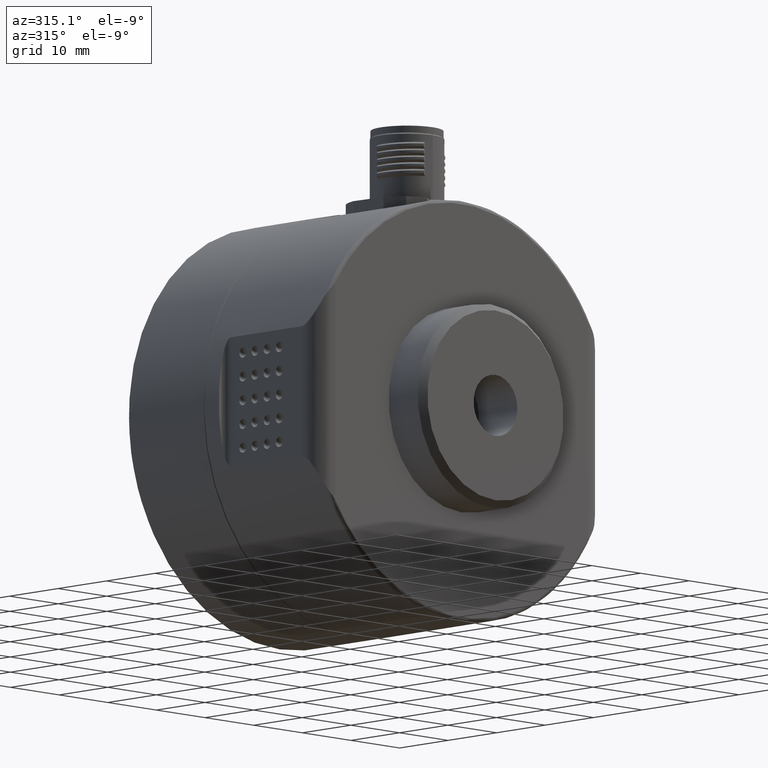
[diagram: clean part render]
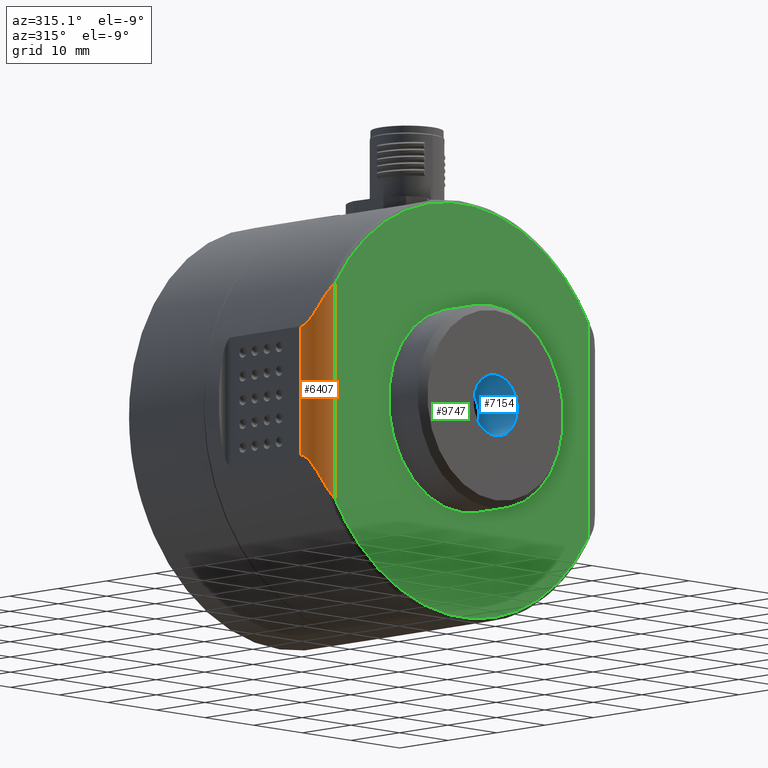
[diagram: same view with three faces highlighted in distinct colors, each labeled with its STEP entity id]
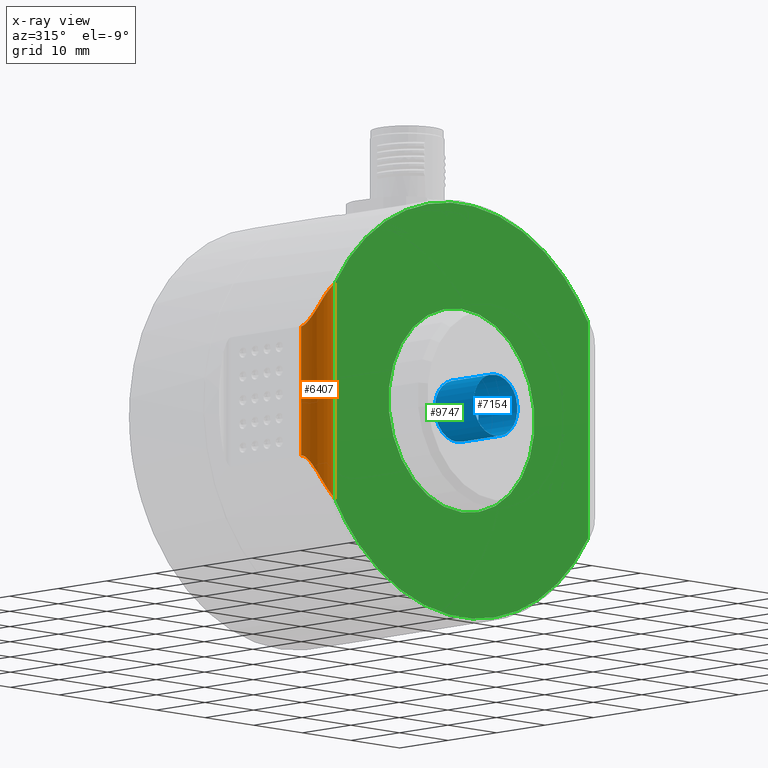
[diagram: x-ray of the same camera — body ghosted, the three highlighted faces saturated]
A machine part, auxiliary view with three faces highlighted in distinct colors.
The next image is the same camera in x-ray (body ghosted, the three faces saturated) — at least one of them is partly hidden behind the body in this view.
Their STEP definitions:

[orange] entity #6407 — the highlighted cylindrical surface (edge-blend (fillet) strip) has radius 3.5 mm, axis along (0, 0, -1).
#298 = CARTESIAN_POINT ( 'NONE',  ( -29.01983627610192684, 8.724490029200730135, -10.90364613308207353 ) ) ;
#545 = CARTESIAN_POINT ( 'NONE',  ( -27.58733386876492588, 7.377371260915672302, -14.11732739898662636 ) ) ;
#601 = CARTESIAN_POINT ( 'NONE',  ( -29.47062372123141927, 10.03319117422748619, 9.616846404971060025 ) ) ;
#784 = CARTESIAN_POINT ( 'NONE',  ( -29.22439851357635021, 9.128294668295218628, 10.34244436372416232 ) ) ;
#1250 = CARTESIAN_POINT ( 'NONE',  ( -29.02109533725660029, 8.726678681763925027, 10.90027786509885210 ) ) ;
#1462 = CARTESIAN_POINT ( 'NONE',  ( -26.84675525649644001, 7.103750489640388466, 15.10660826275925039 ) ) ;
#1556 = CARTESIAN_POINT ( 'NONE',  ( -26.99191942183109560, 7.143479581205147255, 14.93971739706575974 ) ) ;
#1652 = CARTESIAN_POINT ( 'NONE',  ( -26.65316485373524813, 7.060402648696473271, 15.31577344562801102 ) ) ;
#1775 = CARTESIAN_POINT ( 'NONE',  ( -26.41533613868700670, 6.999999999999997335, -15.56825435029491622 ) ) ;
#1865 = CARTESIAN_POINT ( 'NONE',  ( -27.32356021060166995, 7.258974175044822452, -14.51448720846763685 ) ) ;
#2046 = CARTESIAN_POINT ( 'NONE',  ( -27.21450280261062460, 7.217242325463312902, -14.66167515066895000 ) ) ;
#2136 = CARTESIAN_POINT ( 'NONE',  ( -27.02510783118060189, 7.153483535509061575, -14.90004620335820817 ) ) ;
#2199 = CARTESIAN_POINT ( 'NONE',  ( -29.41410298619695851, 9.722507020761527841, 9.788491440914798503 ) ) ;
#2635 = CARTESIAN_POINT ( 'NONE',  ( -26.00000000000000355, 7.000000000000000888, -31.00000000000000000 ) ) ;
#2841 = CARTESIAN_POINT ( 'NONE',  ( -28.00612403063212597, 7.622197176230771198, -13.29918727594713701 ) ) ;
#3349 = CARTESIAN_POINT ( 'NONE',  ( -26.00000000000000355, 6.999999999999999112, -15.94521871910199806 ) ) ;
#3364 = CARTESIAN_POINT ( 'NONE',  ( -27.04105236610530838, 7.158407952738765623, -14.88078026903287743 ) ) ;
#3455 = CARTESIAN_POINT ( 'NONE',  ( -27.39236051198800936, 7.288078150401632982, -14.41569639505568645 ) ) ;
#3487 = CARTESIAN_POINT ( 'NONE',  ( -29.50000000000000000, 10.49999999999999822, -9.526279441628846101 ) ) ;
#3986 = CARTESIAN_POINT ( 'NONE',  ( -26.00000000000000355, 6.999999999999999112, 15.94521871910200161 ) ) ;
#4094 = CARTESIAN_POINT ( 'NONE',  ( -29.50000000000000000, 10.49999999999999822, 9.526279441628833666 ) ) ;
#4527 = CARTESIAN_POINT ( 'NONE',  ( -29.34134207774093639, 9.444449703813807773, -10.00588749692990120 ) ) ;
#4621 = CARTESIAN_POINT ( 'NONE',  ( -29.47031814214039969, 10.03104485144943858, -9.617783244217141814 ) ) ;
#4685 = CARTESIAN_POINT ( 'NONE',  ( -27.09061135674770426, 7.174144399196317856, -14.82015127426037004 ) ) ;
#4824 = EDGE_LOOP ( 'NONE', ( #10750, #7189, #8680, #16443, #11453, #8733 ) ) ;
#4919 = CARTESIAN_POINT ( 'NONE',  ( -29.33953613692756690, 9.448267042202049382, 10.00989422962624431 ) ) ;
#4954 = CARTESIAN_POINT ( 'NONE',  ( -27.80277563773200811, 7.500000000000001776, -13.71151584756169584 ) ) ;
#5282 = CARTESIAN_POINT ( 'NONE',  ( -28.00604246678271636, 7.622148162457222043, 13.29935266257767346 ) ) ;
#5561 = VERTEX_POINT ( 'NONE', #5788 ) ;
#5562 = CARTESIAN_POINT ( 'NONE',  ( -29.15937691855007330, 8.986717798612191999, 10.52476934818192511 ) ) ;
#5788 = CARTESIAN_POINT ( 'NONE',  ( -27.80277563773200811, 7.500000000000001776, -13.71151584756169584 ) ) ;
#6025 = CARTESIAN_POINT ( 'NONE',  ( -28.94673212243806759, 8.606704475342787930, -11.09642382798660520 ) ) ;
#6151 = CARTESIAN_POINT ( 'NONE',  ( -29.49373035344656202, 10.26127900888379330, 9.545746022883585979 ) ) ;
#6273 = CARTESIAN_POINT ( 'NONE',  ( -27.03104537953573328, 7.155306760758024964, -14.89288994995851390 ) ) ;
#6407 = ADVANCED_FACE ( 'NONE', ( #8462 ), #16730, .T. ) ;
#6698 = CARTESIAN_POINT ( 'NONE',  ( -28.55411095831469126, 8.094704563450479284, 12.07719865019971195 ) ) ;
#6778 = CARTESIAN_POINT ( 'NONE',  ( -26.00000000000000355, 10.50000000000000000, -31.00000000000000000 ) ) ;
#7065 = CARTESIAN_POINT ( 'NONE',  ( -29.49349807574635562, 10.25813612552242304, -9.546464119644451074 ) ) ;
#7189 = ORIENTED_EDGE ( 'NONE', *, *, #11470, .F. ) ;
#7190 = CARTESIAN_POINT ( 'NONE',  ( -26.90155517840251775, 7.117763660085286048, 15.04513255979402508 ) ) ;
#7282 = CARTESIAN_POINT ( 'NONE',  ( -27.00443526268167105, 7.147220762579415521, 14.92481289649464316 ) ) ;
#8148 = DIRECTION ( 'NONE',  ( -0.000000000000000000, 0.000000000000000000, -1.000000000000000000 ) ) ;
#8462 = FACE_OUTER_BOUND ( 'NONE', #4824, .T. ) ;
#8560 = CARTESIAN_POINT ( 'NONE',  ( -29.50000000000000000, 10.49999999999999822, -9.526279441628846101 ) ) ;
#8680 = ORIENTED_EDGE ( 'NONE', *, *, #9253, .T. ) ;
#8733 = ORIENTED_EDGE ( 'NONE', *, *, #17654, .F. ) ;
#8745 = CARTESIAN_POINT ( 'NONE',  ( -29.49999999999998579, 10.37871542967276817, -9.526279441628814126 ) ) ;
#9184 = VECTOR ( 'NONE', #9662, 1000.000000000000000 ) ;
#9253 = EDGE_CURVE ( 'NONE', #5561, #11710, #10244, .T. ) ;
#9277 = LINE ( 'NONE', #16610, #13221 ) ;
#9450 = AXIS2_PLACEMENT_3D ( 'NONE', #6778, #12888, #12606 ) ;
#9662 = DIRECTION ( 'NONE',  ( -0.000000000000000000, -0.000000000000000000, 1.000000000000000000 ) ) ;
#9908 = VERTEX_POINT ( 'NONE', #3986 ) ;
#9962 = CARTESIAN_POINT ( 'NONE',  ( -27.80277563773200811, 7.500000000000001776, -13.71151584756169584 ) ) ;
#10184 = CARTESIAN_POINT ( 'NONE',  ( -27.01595836168410258, 7.150693160489367095, 14.91104106602166013 ) ) ;
#10244 = B_SPLINE_CURVE_WITH_KNOTS ( 'NONE', 3,
 ( #4954, #14645, #545, #3455, #1865, #2046, #10670, #4685, #15005, #3364, #6273, #2136, #13593, #1775, #11727 ),
 .UNSPECIFIED., .F., .F.,
 ( 4, 2, 2, 1, 1, 1, 2, 2, 4 ),
 ( 0.000000000000000000, 0.2499999999999587552, 0.3749999999999374389, 0.4374999999999250599, 0.4687499999999182321, 0.4843749999999164557, 0.4921874999999165667, 0.4999999999999166778, 1.000000000000000000 ),
 .UNSPECIFIED. ) ;
#10670 = CARTESIAN_POINT ( 'NONE',  ( -27.15851112047500493, 7.196859059856548946, -14.73501955229045635 ) ) ;
#10750 = ORIENTED_EDGE ( 'NONE', *, *, #15369, .T. ) ;
#11196 = CARTESIAN_POINT ( 'NONE',  ( -27.80277563773200100, 7.500000000000001776, 13.71151584756169939 ) ) ;
#11293 = CARTESIAN_POINT ( 'NONE',  ( -28.19760004224760408, 7.765135656237688977, 12.88764259721577154 ) ) ;
#11453 = ORIENTED_EDGE ( 'NONE', *, *, #16590, .T. ) ;
#11470 = EDGE_CURVE ( 'NONE', #5561, #17199, #15605, .T. ) ;
#11471 = CARTESIAN_POINT ( 'NONE',  ( -28.71772030487485594, 8.278471489075105438, -11.68196172930569254 ) ) ;
#11654 = EDGE_CURVE ( 'NONE', #11710, #9908, #12585, .T. ) ;
#11710 = VERTEX_POINT ( 'NONE', #3349 ) ;
#11727 = CARTESIAN_POINT ( 'NONE',  ( -26.00000000000000355, 6.999999999999999112, -15.94521871910199806 ) ) ;
#12427 = CARTESIAN_POINT ( 'NONE',  ( -28.71968218493845271, 8.280900846030858631, 11.67711281534665879 ) ) ;
#12585 = LINE ( 'NONE', #2635, #9184 ) ;
#12606 = DIRECTION ( 'NONE',  ( -1.000000000000000000, 0.000000000000000000, 0.000000000000000000 ) ) ;
#12830 = CARTESIAN_POINT ( 'NONE',  ( -26.96232303047238688, 7.134812963121364149, 14.97464937345510627 ) ) ;
#12888 = DIRECTION ( 'NONE',  ( 0.000000000000000000, 0.000000000000000000, -1.000000000000000000 ) ) ;
#12889 = CARTESIAN_POINT ( 'NONE',  ( -29.22365405639313707, 9.126388762072403793, -10.34457264059208192 ) ) ;
#12918 = CARTESIAN_POINT ( 'NONE',  ( -27.34316665860298912, 7.250484067306442348, 14.51784084572041955 ) ) ;
#12978 = CARTESIAN_POINT ( 'NONE',  ( -28.19640321633495006, 7.764231473856108678, -12.89022478794746895 ) ) ;
#13074 = CARTESIAN_POINT ( 'NONE',  ( -29.45346327988392332, 9.921886433427216545, -9.669413750773614424 ) ) ;
#13176 = CARTESIAN_POINT ( 'NONE',  ( -27.80277563773200100, 7.500000000000001776, 13.71151584756169939 ) ) ;
#13221 = VECTOR ( 'NONE', #8148, 1000.000000000000000 ) ;
#13469 = CARTESIAN_POINT ( 'NONE',  ( -29.39066255413438000, 9.627044520978053299, 9.858768576621852020 ) ) ;
#13593 = CARTESIAN_POINT ( 'NONE',  ( -26.75760061219214236, 7.071900066462157852, -15.22151205454023248 ) ) ;
#13654 = CARTESIAN_POINT ( 'NONE',  ( -29.31194703298803006, 9.365060718132028228, 10.09047407754302306 ) ) ;
#14423 = CARTESIAN_POINT ( 'NONE',  ( -26.00000000000000355, 6.999999999999999112, 15.94521871910200161 ) ) ;
#14518 = CARTESIAN_POINT ( 'NONE',  ( -26.39758378428619068, 7.018370468376966542, 15.57583016743771687 ) ) ;
#14645 = CARTESIAN_POINT ( 'NONE',  ( -27.70205201453348565, 7.439472635317872395, -13.91575266049631310 ) ) ;
#14764 = VERTEX_POINT ( 'NONE', #4094 ) ;
#14880 = CARTESIAN_POINT ( 'NONE',  ( -29.45389293618396565, 9.924484475880468892, 9.668102713318429409 ) ) ;
#15005 = CARTESIAN_POINT ( 'NONE',  ( -27.05601678760018203, 7.163082401613479533, -14.86260794859819789 ) ) ;
#15369 = EDGE_CURVE ( 'NONE', #14764, #17199, #9277, .T. ) ;
#15605 = B_SPLINE_CURVE_WITH_KNOTS ( 'NONE', 3,
 ( #9962, #2841, #12978, #17206, #11471, #6025, #298, #17111, #12889, #4527, #16079, #13074, #4621, #7065, #8745, #8560 ),
 .UNSPECIFIED., .F., .F.,
 ( 4, 2, 2, 2, 2, 2, 2, 4 ),
 ( 0.000000000000000000, 0.001412509583990192302, 0.002825019167980383304, 0.003531273959975478587, 0.004237528751970572570, 0.004943783543965666986, 0.005296910939963216797, 0.005650038335960765740 ),
 .UNSPECIFIED. ) ;
#16021 = CARTESIAN_POINT ( 'NONE',  ( -27.01274180196567443, 7.149720481161562446, 14.91489130643676830 ) ) ;
#16079 = CARTESIAN_POINT ( 'NONE',  ( -29.39345513294984968, 9.618547819728892279, -9.850941132691106716 ) ) ;
#16443 = ORIENTED_EDGE ( 'NONE', *, *, #11654, .T. ) ;
#16561 = CARTESIAN_POINT ( 'NONE',  ( -29.50000000000000000, 10.49999999999999822, 9.526279441628833666 ) ) ;
#16590 = EDGE_CURVE ( 'NONE', #9908, #17756, #18335, .T. ) ;
#16610 = CARTESIAN_POINT ( 'NONE',  ( -29.50000000000000000, 10.50000000000000000, -31.00000000000000000 ) ) ;
#16653 = CARTESIAN_POINT ( 'NONE',  ( -28.94822956421991478, 8.609045083241216645, 11.09251018587657001 ) ) ;
#16730 = CYLINDRICAL_SURFACE ( 'NONE', #9450, 3.499999999999999556 ) ;
#16969 = B_SPLINE_CURVE_WITH_KNOTS ( 'NONE', 3,
 ( #16561, #17783, #6151, #601, #14880, #2199, #13469, #4919, #13654, #784, #5562, #1250, #16653, #12427, #6698, #11293, #5282, #11196 ),
 .UNSPECIFIED., .F., .F.,
 ( 4, 2, 2, 2, 2, 2, 2, 2, 4 ),
 ( 3.469446951953614189E-18, 0.0003573038037588855157, 0.0007146076075177675620, 0.001071911411276649717, 0.001429215215035531655, 0.002143822822553295097, 0.002858430430071058105, 0.004287645645106578918, 0.005716860860142098863 ),
 .UNSPECIFIED. ) ;
#17111 = CARTESIAN_POINT ( 'NONE',  ( -29.15877845852760331, 8.985415753148501494, -10.52644457040188186 ) ) ;
#17145 = CARTESIAN_POINT ( 'NONE',  ( -27.80277563773200100, 7.500000000000001776, 13.71151584756169939 ) ) ;
#17199 = VERTEX_POINT ( 'NONE', #3487 ) ;
#17206 = CARTESIAN_POINT ( 'NONE',  ( -28.55216849233497456, 8.092708471310809060, -12.08175168621148821 ) ) ;
#17240 = CARTESIAN_POINT ( 'NONE',  ( -27.60131554710258683, 7.378937552212677886, 14.12001551761992069 ) ) ;
#17332 = CARTESIAN_POINT ( 'NONE',  ( -26.73351644924589010, 7.076847297771436729, 15.23097505968460830 ) ) ;
#17654 = EDGE_CURVE ( 'NONE', #14764, #17756, #16969, .T. ) ;
#17756 = VERTEX_POINT ( 'NONE', #13176 ) ;
#17783 = CARTESIAN_POINT ( 'NONE',  ( -29.50000000000000711, 10.37863744802029409, 9.526279441628812350 ) ) ;
#18335 = B_SPLINE_CURVE_WITH_KNOTS ( 'NONE', 3,
 ( #14423, #18557, #14518, #1652, #17332, #1462, #7190, #12830, #1556, #7282, #16021, #10184, #12918, #17240, #17145 ),
 .UNSPECIFIED., .F., .F.,
 ( 4, 2, 2, 1, 1, 1, 2, 2, 4 ),
 ( 0.000000000000000000, 0.2499999999999770184, 0.3749999999999655276, 0.4374999999999592548, 0.4687499999999554245, 0.4843749999999527600, 0.4921874999999527045, 0.4999999999999526490, 1.000000000000000000 ),
 .UNSPECIFIED. ) ;
#18557 = CARTESIAN_POINT ( 'NONE',  ( -26.20765315924810679, 7.000000000000001776, 15.75675006728351590 ) ) ;

[blue] entity #7154 — the highlighted cylindrical surface (bore or boss wall) has radius 4.5 mm, axis along (0, -1, 0).
#443 = AXIS2_PLACEMENT_3D ( 'NONE', #6252, #14628, #7481 ) ;
#485 = CYLINDRICAL_SURFACE ( 'NONE', #12467, 4.500000000000000888 ) ;
#2189 = EDGE_CURVE ( 'NONE', #9624, #9624, #15682, .T. ) ;
#2223 = CARTESIAN_POINT ( 'NONE',  ( 0.000000000000000000, 0.000000000000000000, -4.500000000000000888 ) ) ;
#2313 = VERTEX_POINT ( 'NONE', #2223 ) ;
#3033 = FACE_OUTER_BOUND ( 'NONE', #18147, .T. ) ;
#4171 = DIRECTION ( 'NONE',  ( 0.000000000000000000, -1.000000000000000000, 0.000000000000000000 ) ) ;
#5721 = EDGE_CURVE ( 'NONE', #2313, #2313, #13350, .T. ) ;
#6212 = CARTESIAN_POINT ( 'NONE',  ( 0.000000000000000000, -8.235433105048279856, 0.000000000000000000 ) ) ;
#6252 = CARTESIAN_POINT ( 'NONE',  ( 0.000000000000000000, 0.000000000000000000, 0.000000000000000000 ) ) ;
#6980 = ORIENTED_EDGE ( 'NONE', *, *, #5721, .F. ) ;
#7154 = ADVANCED_FACE ( 'NONE', ( #11567, #3033 ), #485, .F. ) ;
#7481 = DIRECTION ( 'NONE',  ( 0.000000000000000000, 0.000000000000000000, -1.000000000000000000 ) ) ;
#7574 = AXIS2_PLACEMENT_3D ( 'NONE', #10076, #4171, #9888 ) ;
#8749 = DIRECTION ( 'NONE',  ( 0.000000000000000000, 0.000000000000000000, -1.000000000000000000 ) ) ;
#9624 = VERTEX_POINT ( 'NONE', #13769 ) ;
#9888 = DIRECTION ( 'NONE',  ( 0.000000000000000000, 0.000000000000000000, -1.000000000000000000 ) ) ;
#9904 = ORIENTED_EDGE ( 'NONE', *, *, #2189, .F. ) ;
#10076 = CARTESIAN_POINT ( 'NONE',  ( 0.000000000000000000, 8.000000000000000000, 0.000000000000000000 ) ) ;
#11567 = FACE_OUTER_BOUND ( 'NONE', #12565, .T. ) ;
#11937 = DIRECTION ( 'NONE',  ( 0.000000000000000000, -1.000000000000000000, 0.000000000000000000 ) ) ;
#12467 = AXIS2_PLACEMENT_3D ( 'NONE', #6212, #11937, #8749 ) ;
#12565 = EDGE_LOOP ( 'NONE', ( #6980 ) ) ;
#13350 = CIRCLE ( 'NONE', #443, 4.500000000000000888 ) ;
#13769 = CARTESIAN_POINT ( 'NONE',  ( 0.000000000000000000, 8.000000000000000000, -4.500000000000000888 ) ) ;
#14628 = DIRECTION ( 'NONE',  ( -0.000000000000000000, 1.000000000000000000, -0.000000000000000000 ) ) ;
#15682 = CIRCLE ( 'NONE', #7574, 4.500000000000000888 ) ;
#18147 = EDGE_LOOP ( 'NONE', ( #9904 ) ) ;

[green] entity #9747 — the highlighted planar face has unit normal (0, -1, 0).
#15 = EDGE_CURVE ( 'NONE', #11981, #11710, #16399, .T. ) ;
#253 = FACE_OUTER_BOUND ( 'NONE', #17824, .T. ) ;
#347 = ORIENTED_EDGE ( 'NONE', *, *, #15, .F. ) ;
#716 = CARTESIAN_POINT ( 'NONE',  ( 0.000000000000000000, 6.999999999999999112, -15.00000000000000000 ) ) ;
#1259 = EDGE_LOOP ( 'NONE', ( #4393 ) ) ;
#2589 = ORIENTED_EDGE ( 'NONE', *, *, #11654, .F. ) ;
#2635 = CARTESIAN_POINT ( 'NONE',  ( -26.00000000000000355, 7.000000000000000888, -31.00000000000000000 ) ) ;
#3251 = CARTESIAN_POINT ( 'NONE',  ( 31.00000000000000000, 7.000000000000000000, 0.000000000000000000 ) ) ;
#3349 = CARTESIAN_POINT ( 'NONE',  ( -26.00000000000000355, 6.999999999999999112, -15.94521871910199806 ) ) ;
#3811 = VERTEX_POINT ( 'NONE', #716 ) ;
#3829 = CARTESIAN_POINT ( 'NONE',  ( -26.00000000000000355, 6.999999999999999112, 15.94521871910200161 ) ) ;
#3986 = CARTESIAN_POINT ( 'NONE',  ( -26.00000000000000355, 6.999999999999999112, 15.94521871910200161 ) ) ;
#4393 = ORIENTED_EDGE ( 'NONE', *, *, #14294, .T. ) ;
#4506 = VECTOR ( 'NONE', #12595, 1000.000000000000000 ) ;
#4793 = AXIS2_PLACEMENT_3D ( 'NONE', #11738, #6106, #13246 ) ;
#5516 = CARTESIAN_POINT ( 'NONE',  ( -12.71028113539746940, 6.999999999999997335, 37.61520622863209695 ) ) ;
#5636 = LINE ( 'NONE', #11363, #4506 ) ;
#5948 = CARTESIAN_POINT ( 'NONE',  ( 26.00000000000000355, 6.999999999999999112, -15.94521871910200161 ) ) ;
#5978 = PLANE ( 'NONE',  #13422 ) ;
#6106 = DIRECTION ( 'NONE',  ( -0.000000000000000000, 1.000000000000000000, -0.000000000000000000 ) ) ;
#6249 = FACE_BOUND ( 'NONE', #1259, .T. ) ;
#7460 = CARTESIAN_POINT ( 'NONE',  ( 26.00000000000000355, 6.999999999999999112, -15.94521871910200161 ) ) ;
#7945 = CARTESIAN_POINT ( 'NONE',  ( 26.00000000000000355, 6.999999999999999112, 15.94521871910200161 ) ) ;
#8448 = ORIENTED_EDGE ( 'NONE', *, *, #12964, .F. ) ;
#8853 = CARTESIAN_POINT ( 'NONE',  ( 12.71028113539746762, 6.999999999999997335, -37.61520622863209695 ) ) ;
#8969 = DIRECTION ( 'NONE',  ( 0.000000000000000000, -0.000000000000000000, -1.000000000000000000 ) ) ;
#9184 = VECTOR ( 'NONE', #9662, 1000.000000000000000 ) ;
#9349 = VERTEX_POINT ( 'NONE', #7945 ) ;
#9662 = DIRECTION ( 'NONE',  ( -0.000000000000000000, -0.000000000000000000, 1.000000000000000000 ) ) ;
#9747 = ADVANCED_FACE ( 'NONE', ( #6249, #253 ), #5978, .T. ) ;
#9885 = CARTESIAN_POINT ( 'NONE',  ( -26.00000000000000355, 6.999999999999999112, -15.94521871910199806 ) ) ;
#9908 = VERTEX_POINT ( 'NONE', #3986 ) ;
#10566 = ORIENTED_EDGE ( 'NONE', *, *, #14216, .F. ) ;
#10860 = CARTESIAN_POINT ( 'NONE',  ( 12.71028113539746940, 6.999999999999997335, 37.61520622863208985 ) ) ;
#10955 = CARTESIAN_POINT ( 'NONE',  ( 26.00000000000000355, 6.999999999999999112, 15.94521871910200161 ) ) ;
#11363 = CARTESIAN_POINT ( 'NONE',  ( 26.00000000000000355, 7.000000000000000888, 0.000000000000000000 ) ) ;
#11654 = EDGE_CURVE ( 'NONE', #11710, #9908, #12585, .T. ) ;
#11710 = VERTEX_POINT ( 'NONE', #3349 ) ;
#11738 = CARTESIAN_POINT ( 'NONE',  ( 0.000000000000000000, 6.999999999999999112, 0.000000000000000000 ) ) ;
#11981 = VERTEX_POINT ( 'NONE', #7460 ) ;
#12585 = LINE ( 'NONE', #2635, #9184 ) ;
#12595 = DIRECTION ( 'NONE',  ( -0.000000000000000000, -0.000000000000000000, -1.000000000000000000 ) ) ;
#12895 = CIRCLE ( 'NONE', #4793, 15.00000000000000000 ) ;
#12964 = EDGE_CURVE ( 'NONE', #9908, #9349, #15816, .T. ) ;
#13183 = CARTESIAN_POINT ( 'NONE',  ( -12.71028113539747828, 6.999999999999997335, -37.61520622863208985 ) ) ;
#13246 = DIRECTION ( 'NONE',  ( 0.000000000000000000, 0.000000000000000000, -1.000000000000000000 ) ) ;
#13422 = AXIS2_PLACEMENT_3D ( 'NONE', #3251, #17435, #8969 ) ;
#14216 = EDGE_CURVE ( 'NONE', #9349, #11981, #5636, .T. ) ;
#14294 = EDGE_CURVE ( 'NONE', #3811, #3811, #12895, .T. ) ;
#15816 =( BOUNDED_CURVE ( )  B_SPLINE_CURVE ( 3, ( #3829, #5516, #10860, #10955 ),
 .UNSPECIFIED., .F., .T. ) 
 B_SPLINE_CURVE_WITH_KNOTS ( ( 4, 4 ),
 ( 0.000000000000000000, 1.000000000000000000 ),
 .UNSPECIFIED. ) 
 CURVE ( )  GEOMETRIC_REPRESENTATION_ITEM ( )  RATIONAL_B_SPLINE_CURVE ( ( 1.000000000000000000, 0.6818627042426665952, 0.6818627042426665952, 1.000000000000000000 ) ) 
 REPRESENTATION_ITEM ( '' )  );
#16399 =( BOUNDED_CURVE ( )  B_SPLINE_CURVE ( 3, ( #5948, #8853, #13183, #9885 ),
 .UNSPECIFIED., .F., .F. ) 
 B_SPLINE_CURVE_WITH_KNOTS ( ( 4, 4 ),
 ( 0.000000000000000000, 1.000000000000000000 ),
 .UNSPECIFIED. ) 
 CURVE ( )  GEOMETRIC_REPRESENTATION_ITEM ( )  RATIONAL_B_SPLINE_CURVE ( ( 1.000000000000000000, 0.6818627042426665952, 0.6818627042426665952, 1.000000000000000000 ) ) 
 REPRESENTATION_ITEM ( '' )  );
#17435 = DIRECTION ( 'NONE',  ( 0.000000000000000000, -1.000000000000000000, 0.000000000000000000 ) ) ;
#17824 = EDGE_LOOP ( 'NONE', ( #8448, #2589, #347, #10566 ) ) ;